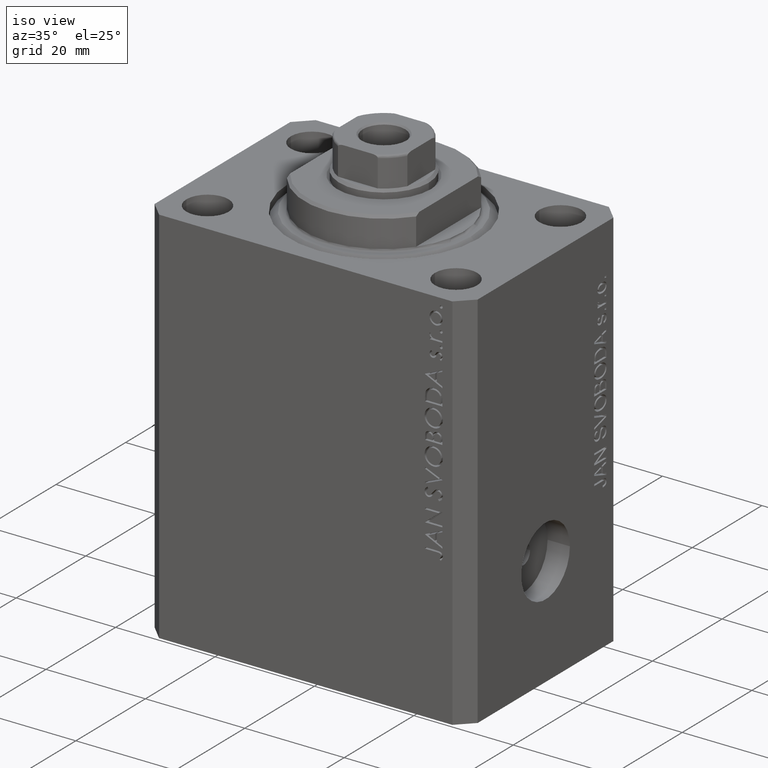
[diagram: clean part render]
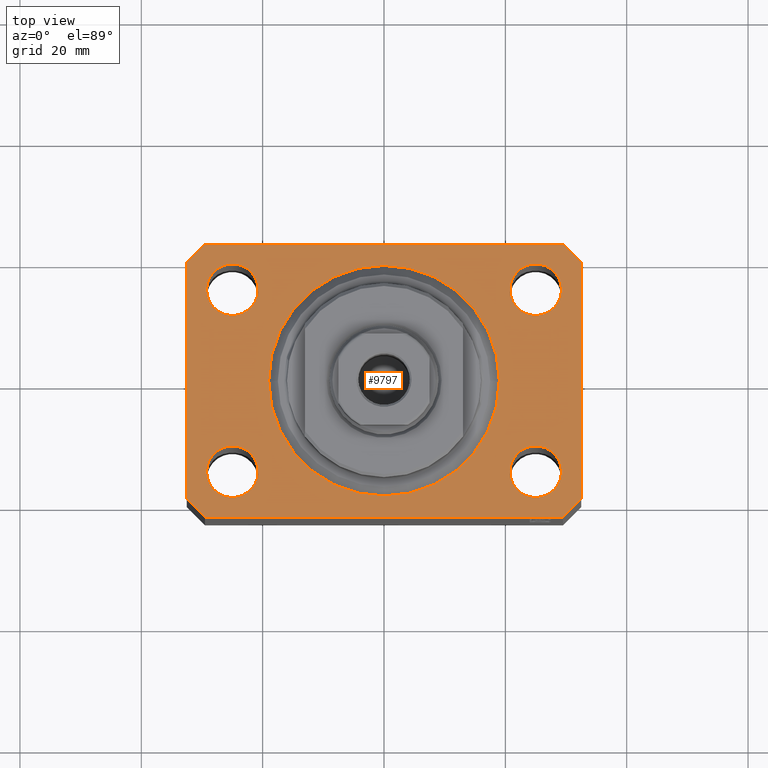
[diagram: tour spotlight — one face highlighted and labeled with its STEP entity id]
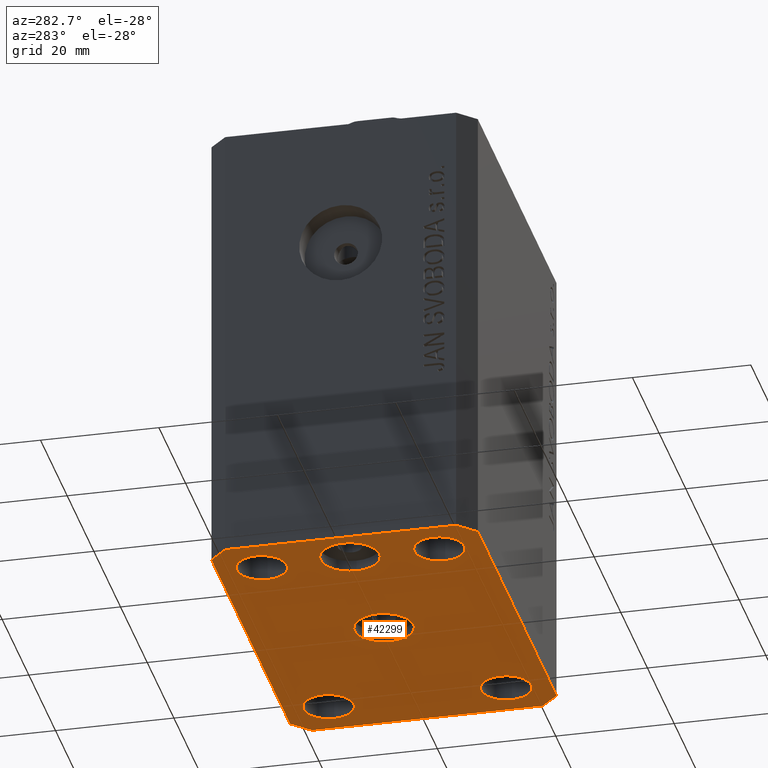
[diagram: tour spotlight — one face highlighted and labeled with its STEP entity id]
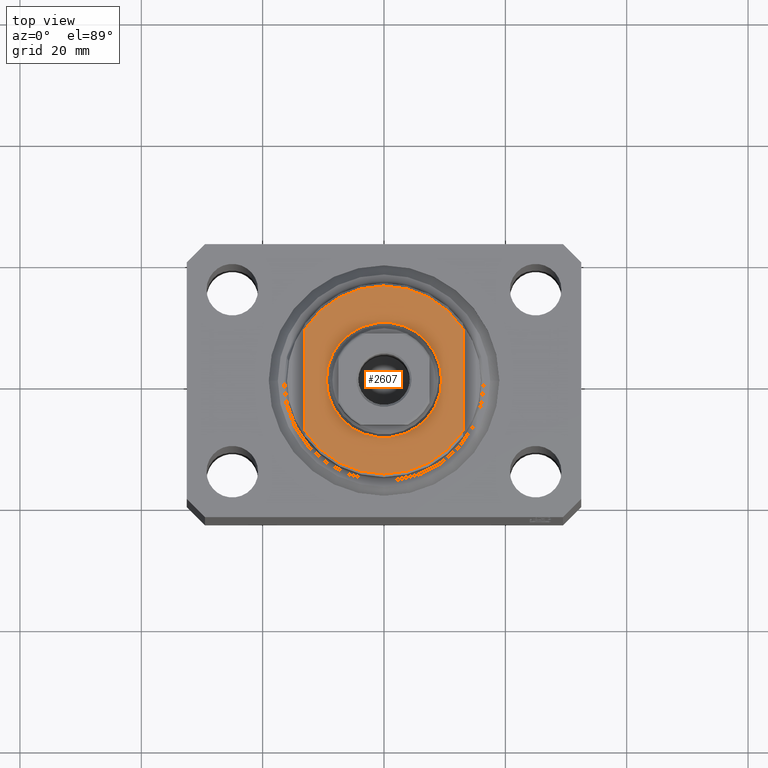
[diagram: tour spotlight — one face highlighted and labeled with its STEP entity id]
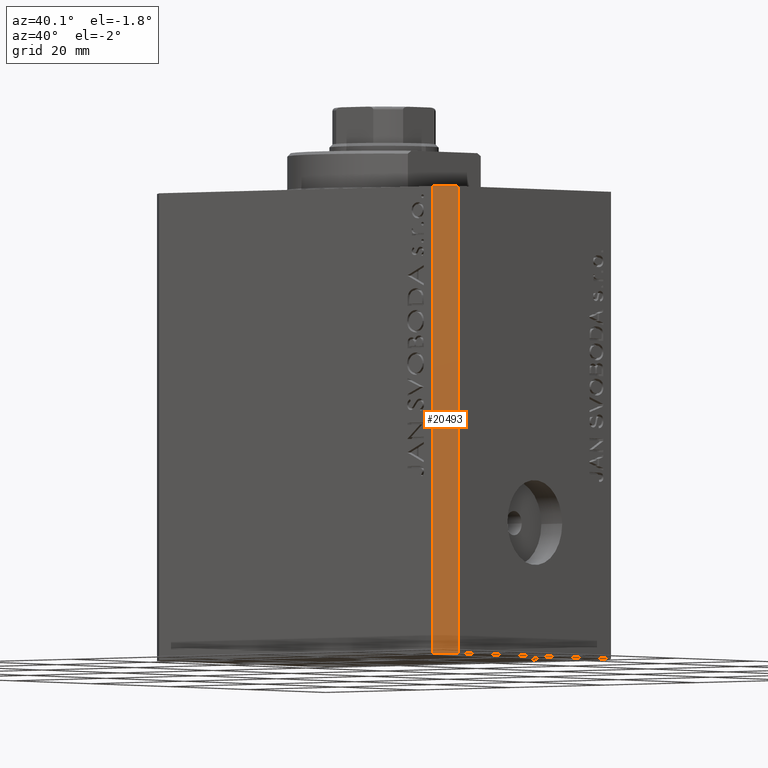
[diagram: tour spotlight — one face highlighted and labeled with its STEP entity id]
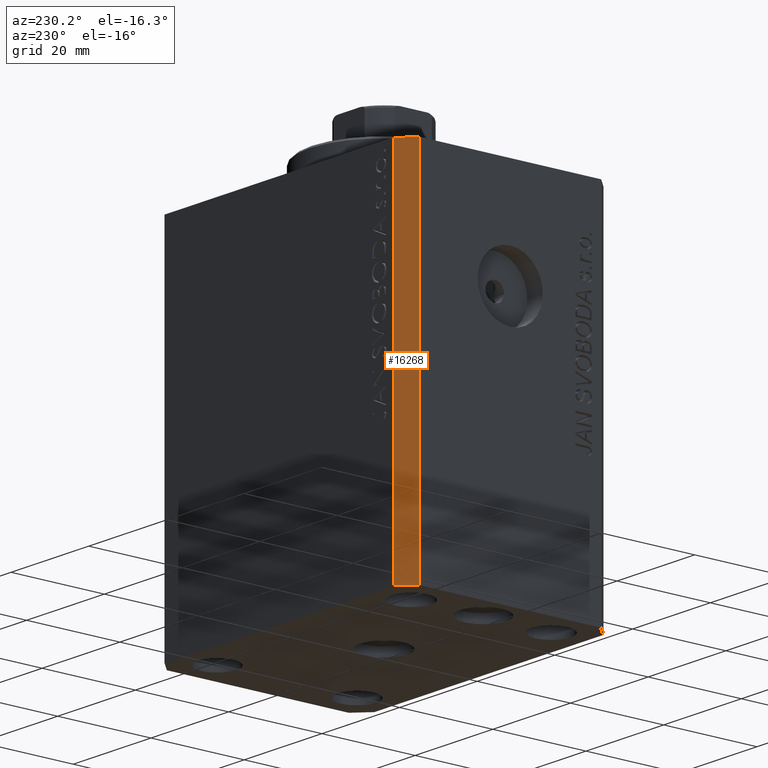
[diagram: tour spotlight — one face highlighted and labeled with its STEP entity id]
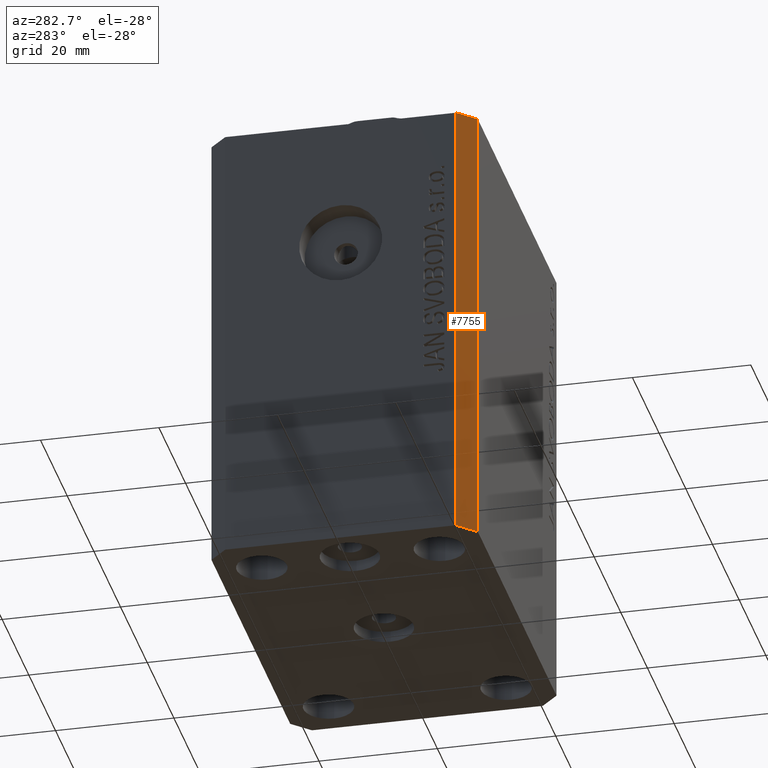
[diagram: tour spotlight — one face highlighted and labeled with its STEP entity id]
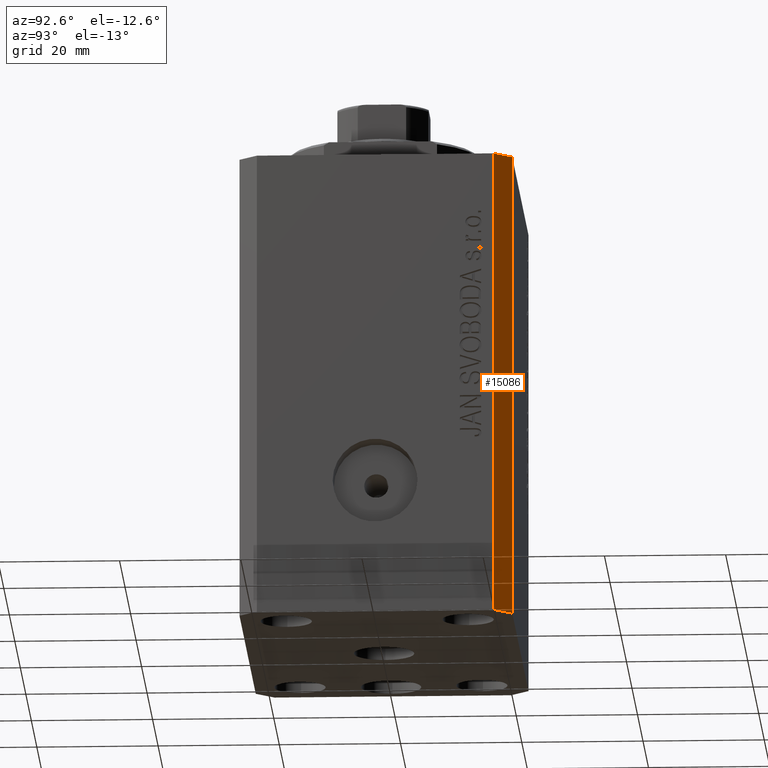
[diagram: tour spotlight — one face highlighted and labeled with its STEP entity id]
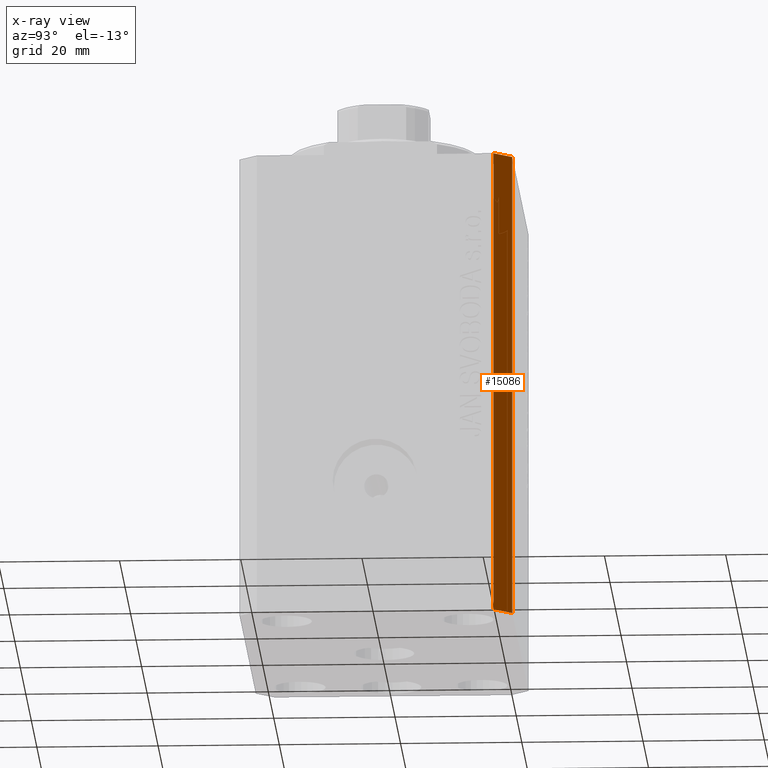
[diagram: x-ray of the same camera — body ghosted, this tour face saturated]
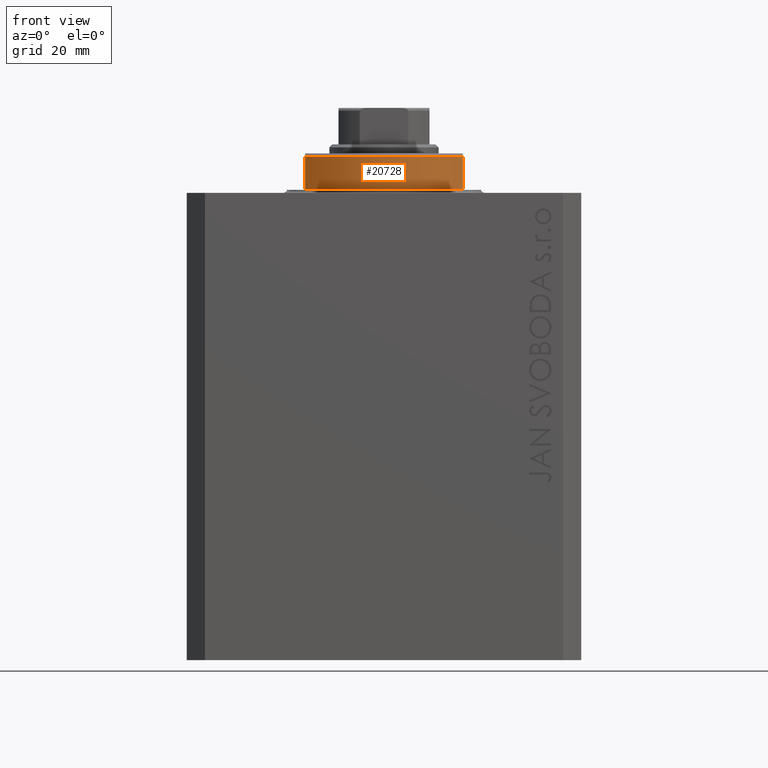
[diagram: tour spotlight — one face highlighted and labeled with its STEP entity id]
A machine part: a face-by-face anatomy tour. The part has 872 B-rep faces; the first image is the clean iso view, then the 8 largest visible faces are spotlighted one at a time (largest first), each with its STEP entity span.

Face 1 — top view, entity #9797. In plain terms, the highlighted planar face has unit normal (0, 0, 1).
Definition (entity closure, byte-faithful):
#174 = FACE_BOUND ( 'NONE', #36271, .T. ) ;
#799 = DIRECTION ( 'NONE',  ( 1.000000000000000000, 1.176083712526788232E-16, 0.000000000000000000 ) ) ;
#910 = VERTEX_POINT ( 'NONE', #35014 ) ;
#1026 = EDGE_CURVE ( 'NONE', #30243, #38079, #16422, .T. ) ;
#1365 = CIRCLE ( 'NONE', #15105, 4.250000000040370374 ) ;
#1770 = VECTOR ( 'NONE', #18984, 1000.000000000000000 ) ;
#2295 = VERTEX_POINT ( 'NONE', #39845 ) ;
#2448 = DIRECTION ( 'NONE',  ( 1.000000000000000000, 0.000000000000000000, 0.000000000000000000 ) ) ;
#2594 = DIRECTION ( 'NONE',  ( 1.000000000000000000, 0.000000000000000000, 0.000000000000000000 ) ) ;
#2703 = ORIENTED_EDGE ( 'NONE', *, *, #3623, .F. ) ;
#3148 = ORIENTED_EDGE ( 'NONE', *, *, #23228, .T. ) ;
#3334 = VERTEX_POINT ( 'NONE', #9549 ) ;
#3623 = EDGE_CURVE ( 'NONE', #13708, #6748, #14978, .T. ) ;
#3875 = EDGE_LOOP ( 'NONE', ( #36753, #8417 ) ) ;
#3958 = CARTESIAN_POINT ( 'NONE',  ( -25.00000000000000000, 14.99999999999999645, 0.000000000000000000 ) ) ;
#4056 = DIRECTION ( 'NONE',  ( 1.000000000000000000, 0.000000000000000000, 0.000000000000000000 ) ) ;
#4312 = CARTESIAN_POINT ( 'NONE',  ( 32.49999999999702993, 19.49999999999945999, 0.000000000000000000 ) ) ;
#4405 = ORIENTED_EDGE ( 'NONE', *, *, #34308, .F. ) ;
#4838 = CARTESIAN_POINT ( 'NONE',  ( -24.99999999999999289, -15.00000000000000355, 0.000000000000000000 ) ) ;
#4841 = EDGE_LOOP ( 'NONE', ( #28428, #4405 ) ) ;
#5182 = CIRCLE ( 'NONE', #20350, 4.250000000040370374 ) ;
#5966 = EDGE_CURVE ( 'NONE', #26535, #33565, #23826, .T. ) ;
#6162 = EDGE_CURVE ( 'NONE', #9951, #40370, #26653, .T. ) ;
#6533 = ORIENTED_EDGE ( 'NONE', *, *, #32008, .T. ) ;
#6611 = EDGE_CURVE ( 'NONE', #36564, #26535, #7877, .T. ) ;
#6712 = CIRCLE ( 'NONE', #29719, 4.250000000021375790 ) ;
#6726 = DIRECTION ( 'NONE',  ( 0.000000000000000000, 0.000000000000000000, 1.000000000000000000 ) ) ;
#6748 = VERTEX_POINT ( 'NONE', #42190 ) ;
#6767 = EDGE_CURVE ( 'NONE', #910, #2295, #1365, .T. ) ;
#6836 = AXIS2_PLACEMENT_3D ( 'NONE', #11343, #20845, #17232 ) ;
#7877 = LINE ( 'NONE', #31842, #41077 ) ;
#7934 = ORIENTED_EDGE ( 'NONE', *, *, #43990, .F. ) ;
#8099 = DIRECTION ( 'NONE',  ( -1.000000000000000000, -3.528251137580330676E-16, 0.000000000000000000 ) ) ;
#8417 = ORIENTED_EDGE ( 'NONE', *, *, #6162, .F. ) ;
#8634 = EDGE_CURVE ( 'NONE', #3334, #29466, #10694, .T. ) ;
#9326 = VERTEX_POINT ( 'NONE', #41653 ) ;
#9549 = CARTESIAN_POINT ( 'NONE',  ( 19.00000000000000000, 0.000000000000000000, 0.000000000000000000 ) ) ;
#9797 = ADVANCED_FACE ( 'NONE', ( #24146, #27529, #174, #37714, #28585, #27762 ), #24369, .T. ) ;
#9951 = VERTEX_POINT ( 'NONE', #44376 ) ;
#10303 = CARTESIAN_POINT ( 'NONE',  ( 29.49999999999707967, 22.49999999999952038, 0.000000000000000000 ) ) ;
#10511 = VERTEX_POINT ( 'NONE', #30043 ) ;
#10541 = CARTESIAN_POINT ( 'NONE',  ( 0.000000000000000000, 0.000000000000000000, 0.000000000000000000 ) ) ;
#10694 = CIRCLE ( 'NONE', #16472, 19.00000000000000000 ) ;
#10953 = DIRECTION ( 'NONE',  ( 1.000000000000000000, 0.000000000000000000, 0.000000000000000000 ) ) ;
#11343 = CARTESIAN_POINT ( 'NONE',  ( 0.000000000000000000, 0.000000000000000000, 0.000000000000000000 ) ) ;
#11864 = DIRECTION ( 'NONE',  ( 0.000000000000000000, 0.000000000000000000, 1.000000000000000000 ) ) ;
#12806 = DIRECTION ( 'NONE',  ( 1.334402673828349134E-14, 1.000000000000000000, 0.000000000000000000 ) ) ;
#12873 = CARTESIAN_POINT ( 'NONE',  ( 32.49999999999702993, 19.49999999999945999, 0.000000000000000000 ) ) ;
#12901 = EDGE_LOOP ( 'NONE', ( #39689, #34670 ) ) ;
#13260 = DIRECTION ( 'NONE',  ( 1.000000000000000000, 0.000000000000000000, 0.000000000000000000 ) ) ;
#13498 = CARTESIAN_POINT ( 'NONE',  ( -29.49999999999650413, 22.49999999999949907, 0.000000000000000000 ) ) ;
#13708 = VERTEX_POINT ( 'NONE', #29099 ) ;
#14100 = CARTESIAN_POINT ( 'NONE',  ( 29.49999999999650413, -22.49999999999949196, 0.000000000000000000 ) ) ;
#14576 = ORIENTED_EDGE ( 'NONE', *, *, #43115, .T. ) ;
#14577 = EDGE_CURVE ( 'NONE', #33565, #10511, #27133, .T. ) ;
#14978 = CIRCLE ( 'NONE', #44624, 4.249999999976314058 ) ;
#15105 = AXIS2_PLACEMENT_3D ( 'NONE', #38814, #11864, #22261 ) ;
#16228 = CARTESIAN_POINT ( 'NONE',  ( -25.00000000000000000, 14.99999999999999645, 0.000000000000000000 ) ) ;
#16233 = CARTESIAN_POINT ( 'NONE',  ( 24.99999999999999289, -15.00000000000000355, 0.000000000000000000 ) ) ;
#16422 = LINE ( 'NONE', #30225, #22073 ) ;
#16472 = AXIS2_PLACEMENT_3D ( 'NONE', #10541, #27955, #13260 ) ;
#17232 = DIRECTION ( 'NONE',  ( 1.000000000000000000, 0.000000000000000000, 0.000000000000000000 ) ) ;
#17473 = CARTESIAN_POINT ( 'NONE',  ( -29.49999999999650413, 22.49999999999949907, 0.000000000000000000 ) ) ;
#17756 = ORIENTED_EDGE ( 'NONE', *, *, #33889, .F. ) ;
#17761 = LINE ( 'NONE', #18637, #37793 ) ;
#18007 = CARTESIAN_POINT ( 'NONE',  ( 29.49999999999650413, -22.49999999999949196, 0.000000000000000000 ) ) ;
#18500 = CARTESIAN_POINT ( 'NONE',  ( 25.00000000000000000, 14.99999999999999289, 0.000000000000000000 ) ) ;
#18637 = CARTESIAN_POINT ( 'NONE',  ( -29.49999999999650413, -22.49999999999949907, 0.000000000000000000 ) ) ;
#18984 = DIRECTION ( 'NONE',  ( -0.7071067811865344721, 0.7071067811865606734, 0.000000000000000000 ) ) ;
#19057 = DIRECTION ( 'NONE',  ( 0.7071067811865474617, -0.7071067811865474617, 0.000000000000000000 ) ) ;
#19090 = DIRECTION ( 'NONE',  ( 0.000000000000000000, 0.000000000000000000, 1.000000000000000000 ) ) ;
#19691 = CIRCLE ( 'NONE', #34141, 4.249999999957291053 ) ;
#20283 = DIRECTION ( 'NONE',  ( 1.000000000000000000, 0.000000000000000000, 0.000000000000000000 ) ) ;
#20350 = AXIS2_PLACEMENT_3D ( 'NONE', #4838, #28366, #10953 ) ;
#20381 = CIRCLE ( 'NONE', #23306, 4.250000000021375790 ) ;
#20430 = DIRECTION ( 'NONE',  ( 0.7071067811865483499, 0.7071067811865466846, 0.000000000000000000 ) ) ;
#20516 = DIRECTION ( 'NONE',  ( 1.000000000000000000, 0.000000000000000000, -0.000000000000000000 ) ) ;
#20845 = DIRECTION ( 'NONE',  ( 0.000000000000000000, 0.000000000000000000, 1.000000000000000000 ) ) ;
#20858 = VECTOR ( 'NONE', #27665, 1000.000000000000114 ) ;
#21380 = CARTESIAN_POINT ( 'NONE',  ( 25.00000000000000000, 14.99999999999999289, 0.000000000000000000 ) ) ;
#21503 = DIRECTION ( 'NONE',  ( 0.000000000000000000, 0.000000000000000000, 1.000000000000000000 ) ) ;
#21584 = EDGE_LOOP ( 'NONE', ( #28498, #31184, #36011, #29215, #3148, #6533, #29380, #14576 ) ) ;
#21784 = EDGE_CURVE ( 'NONE', #10511, #31867, #32634, .T. ) ;
#22073 = VECTOR ( 'NONE', #12806, 1000.000000000000000 ) ;
#22261 = DIRECTION ( 'NONE',  ( 1.000000000000000000, 0.000000000000000000, 0.000000000000000000 ) ) ;
#22391 = DIRECTION ( 'NONE',  ( 1.000000000000000000, 0.000000000000000000, 0.000000000000000000 ) ) ;
#22990 = AXIS2_PLACEMENT_3D ( 'NONE', #35588, #6726, #20516 ) ;
#23228 = EDGE_CURVE ( 'NONE', #31867, #39875, #17761, .T. ) ;
#23306 = AXIS2_PLACEMENT_3D ( 'NONE', #16228, #36366, #2448 ) ;
#23515 = CARTESIAN_POINT ( 'NONE',  ( -32.49999999999650413, 19.49999999999949907, 0.000000000000000000 ) ) ;
#23826 = LINE ( 'NONE', #17473, #20858 ) ;
#24146 = FACE_BOUND ( 'NONE', #39015, .T. ) ;
#24369 = PLANE ( 'NONE',  #22990 ) ;
#24913 = CARTESIAN_POINT ( 'NONE',  ( 24.99999999999999289, -15.00000000000000355, 0.000000000000000000 ) ) ;
#25265 = VERTEX_POINT ( 'NONE', #32796 ) ;
#25440 = EDGE_CURVE ( 'NONE', #40370, #9951, #19691, .T. ) ;
#25734 = CARTESIAN_POINT ( 'NONE',  ( -32.49999999999650413, 19.49999999999949907, 0.000000000000000000 ) ) ;
#26333 = CIRCLE ( 'NONE', #6836, 19.00000000000000000 ) ;
#26535 = VERTEX_POINT ( 'NONE', #13498 ) ;
#26653 = CIRCLE ( 'NONE', #41793, 4.249999999957291053 ) ;
#26782 = CARTESIAN_POINT ( 'NONE',  ( -29.49999999999650413, -22.49999999999949907, 0.000000000000000000 ) ) ;
#27133 = LINE ( 'NONE', #23515, #42638 ) ;
#27529 = FACE_BOUND ( 'NONE', #12901, .T. ) ;
#27665 = DIRECTION ( 'NONE',  ( -0.7071067811865474617, -0.7071067811865474617, 0.000000000000000000 ) ) ;
#27762 = FACE_OUTER_BOUND ( 'NONE', #21584, .T. ) ;
#27807 = VECTOR ( 'NONE', #20430, 1000.000000000000000 ) ;
#27955 = DIRECTION ( 'NONE',  ( 0.000000000000000000, 0.000000000000000000, 1.000000000000000000 ) ) ;
#28119 = LINE ( 'NONE', #14100, #27807 ) ;
#28366 = DIRECTION ( 'NONE',  ( 0.000000000000000000, 0.000000000000000000, 1.000000000000000000 ) ) ;
#28428 = ORIENTED_EDGE ( 'NONE', *, *, #34882, .F. ) ;
#28461 = DIRECTION ( 'NONE',  ( 0.000000000000000000, 0.000000000000000000, 1.000000000000000000 ) ) ;
#28498 = ORIENTED_EDGE ( 'NONE', *, *, #6611, .T. ) ;
#28585 = FACE_BOUND ( 'NONE', #4841, .T. ) ;
#29014 = CARTESIAN_POINT ( 'NONE',  ( -32.49999999999650413, -19.49999999999949907, 0.000000000000000000 ) ) ;
#29099 = CARTESIAN_POINT ( 'NONE',  ( 20.75000000002367884, -15.00000000000000355, 0.000000000000000000 ) ) ;
#29215 = ORIENTED_EDGE ( 'NONE', *, *, #21784, .T. ) ;
#29380 = ORIENTED_EDGE ( 'NONE', *, *, #1026, .T. ) ;
#29466 = VERTEX_POINT ( 'NONE', #42944 ) ;
#29719 = AXIS2_PLACEMENT_3D ( 'NONE', #3958, #41710, #38331 ) ;
#29795 = VECTOR ( 'NONE', #19057, 1000.000000000000114 ) ;
#30037 = DIRECTION ( 'NONE',  ( 0.000000000000000000, 0.000000000000000000, 1.000000000000000000 ) ) ;
#30043 = CARTESIAN_POINT ( 'NONE',  ( -32.49999999999650413, -19.49999999999949907, 0.000000000000000000 ) ) ;
#30225 = CARTESIAN_POINT ( 'NONE',  ( 32.49999999999651124, -19.49999999999949196, 0.000000000000000000 ) ) ;
#30243 = VERTEX_POINT ( 'NONE', #34899 ) ;
#31184 = ORIENTED_EDGE ( 'NONE', *, *, #5966, .T. ) ;
#31842 = CARTESIAN_POINT ( 'NONE',  ( 29.49999999999707967, 22.49999999999952038, 0.000000000000000000 ) ) ;
#31867 = VERTEX_POINT ( 'NONE', #26782 ) ;
#32008 = EDGE_CURVE ( 'NONE', #39875, #30243, #28119, .T. ) ;
#32634 = LINE ( 'NONE', #29014, #29795 ) ;
#32796 = CARTESIAN_POINT ( 'NONE',  ( -20.74999999997862687, 14.99999999999999645, 0.000000000000000000 ) ) ;
#33565 = VERTEX_POINT ( 'NONE', #25734 ) ;
#33889 = EDGE_CURVE ( 'NONE', #6748, #13708, #36276, .T. ) ;
#34141 = AXIS2_PLACEMENT_3D ( 'NONE', #18500, #28461, #4056 ) ;
#34308 = EDGE_CURVE ( 'NONE', #9326, #25265, #20381, .T. ) ;
#34670 = ORIENTED_EDGE ( 'NONE', *, *, #35954, .F. ) ;
#34882 = EDGE_CURVE ( 'NONE', #25265, #9326, #6712, .T. ) ;
#34899 = CARTESIAN_POINT ( 'NONE',  ( 32.49999999999651124, -19.49999999999949196, 0.000000000000000000 ) ) ;
#35014 = CARTESIAN_POINT ( 'NONE',  ( -20.74999999995962341, -15.00000000000000355, 0.000000000000000000 ) ) ;
#35588 = CARTESIAN_POINT ( 'NONE',  ( 0.000000000000000000, 0.000000000000000000, 0.000000000000000000 ) ) ;
#35954 = EDGE_CURVE ( 'NONE', #2295, #910, #5182, .T. ) ;
#36011 = ORIENTED_EDGE ( 'NONE', *, *, #14577, .T. ) ;
#36271 = EDGE_LOOP ( 'NONE', ( #17756, #2703 ) ) ;
#36276 = CIRCLE ( 'NONE', #40643, 4.249999999976314058 ) ;
#36366 = DIRECTION ( 'NONE',  ( 0.000000000000000000, 0.000000000000000000, 1.000000000000000000 ) ) ;
#36564 = VERTEX_POINT ( 'NONE', #10303 ) ;
#36753 = ORIENTED_EDGE ( 'NONE', *, *, #25440, .F. ) ;
#37379 = CARTESIAN_POINT ( 'NONE',  ( 29.24999999995729283, 14.99999999999999289, 0.000000000000000000 ) ) ;
#37714 = FACE_BOUND ( 'NONE', #3875, .T. ) ;
#37793 = VECTOR ( 'NONE', #799, 1000.000000000000000 ) ;
#38079 = VERTEX_POINT ( 'NONE', #4312 ) ;
#38331 = DIRECTION ( 'NONE',  ( 1.000000000000000000, 0.000000000000000000, 0.000000000000000000 ) ) ;
#38814 = CARTESIAN_POINT ( 'NONE',  ( -24.99999999999999289, -15.00000000000000355, 0.000000000000000000 ) ) ;
#39015 = EDGE_LOOP ( 'NONE', ( #42440, #7934 ) ) ;
#39689 = ORIENTED_EDGE ( 'NONE', *, *, #6767, .F. ) ;
#39845 = CARTESIAN_POINT ( 'NONE',  ( -29.25000000004036593, -15.00000000000000355, 0.000000000000000000 ) ) ;
#39875 = VERTEX_POINT ( 'NONE', #18007 ) ;
#40370 = VERTEX_POINT ( 'NONE', #37379 ) ;
#40643 = AXIS2_PLACEMENT_3D ( 'NONE', #24913, #21503, #22391 ) ;
#40705 = DIRECTION ( 'NONE',  ( 0.000000000000000000, -1.000000000000000000, 0.000000000000000000 ) ) ;
#41077 = VECTOR ( 'NONE', #8099, 1000.000000000000000 ) ;
#41653 = CARTESIAN_POINT ( 'NONE',  ( -29.25000000002137668, 14.99999999999999645, 0.000000000000000000 ) ) ;
#41710 = DIRECTION ( 'NONE',  ( 0.000000000000000000, 0.000000000000000000, 1.000000000000000000 ) ) ;
#41793 = AXIS2_PLACEMENT_3D ( 'NONE', #21380, #19090, #2594 ) ;
#42190 = CARTESIAN_POINT ( 'NONE',  ( 29.24999999997631051, -15.00000000000000355, 0.000000000000000000 ) ) ;
#42440 = ORIENTED_EDGE ( 'NONE', *, *, #8634, .F. ) ;
#42638 = VECTOR ( 'NONE', #40705, 1000.000000000000000 ) ;
#42944 = CARTESIAN_POINT ( 'NONE',  ( -19.00000000000000000, 2.326828918379970970E-15, 0.000000000000000000 ) ) ;
#43115 = EDGE_CURVE ( 'NONE', #38079, #36564, #43628, .T. ) ;
#43628 = LINE ( 'NONE', #12873, #1770 ) ;
#43990 = EDGE_CURVE ( 'NONE', #29466, #3334, #26333, .T. ) ;
#44376 = CARTESIAN_POINT ( 'NONE',  ( 20.75000000004271072, 14.99999999999999289, 0.000000000000000000 ) ) ;
#44624 = AXIS2_PLACEMENT_3D ( 'NONE', #16233, #30037, #20283 ) ;

Face 2 — auxiliary view, entity #42299. In plain terms, the highlighted planar face has unit normal (0, 0, 1).
Definition (entity closure, byte-faithful):
#40 = EDGE_LOOP ( 'NONE', ( #23944, #20248 ) ) ;
#81 = VERTEX_POINT ( 'NONE', #13479 ) ;
#236 = CIRCLE ( 'NONE', #5990, 4.249999999976314058 ) ;
#432 = CARTESIAN_POINT ( 'NONE',  ( 32.49999999999702993, 19.49999999999945999, -77.00000000000000000 ) ) ;
#1785 = VERTEX_POINT ( 'NONE', #29779 ) ;
#2425 = FACE_BOUND ( 'NONE', #36197, .T. ) ;
#2439 = LINE ( 'NONE', #37029, #10977 ) ;
#2455 = AXIS2_PLACEMENT_3D ( 'NONE', #9627, #15501, #29310 ) ;
#3538 = DIRECTION ( 'NONE',  ( 1.000000000000000000, 1.176083712526788232E-16, 0.000000000000000000 ) ) ;
#4087 = DIRECTION ( 'NONE',  ( -1.000000000000000000, 0.000000000000000000, 0.000000000000000000 ) ) ;
#4379 = CARTESIAN_POINT ( 'NONE',  ( 25.00000000000000000, 14.99999999999999289, -77.00000000000000000 ) ) ;
#4656 = VERTEX_POINT ( 'NONE', #15508 ) ;
#4717 = CARTESIAN_POINT ( 'NONE',  ( -29.25000000002137668, 14.99999999999999645, -77.00000000000000000 ) ) ;
#5288 = VECTOR ( 'NONE', #38309, 1000.000000000000000 ) ;
#5688 = ORIENTED_EDGE ( 'NONE', *, *, #12981, .F. ) ;
#5747 = AXIS2_PLACEMENT_3D ( 'NONE', #20472, #14568, #41057 ) ;
#5990 = AXIS2_PLACEMENT_3D ( 'NONE', #8672, #40106, #25850 ) ;
#6090 = VERTEX_POINT ( 'NONE', #36645 ) ;
#6470 = CARTESIAN_POINT ( 'NONE',  ( 0.000000000000000000, 0.000000000000000000, -77.00000000000000000 ) ) ;
#6521 = EDGE_LOOP ( 'NONE', ( #36711, #7642, #34486, #36423, #30189, #14728, #39263, #32217 ) ) ;
#6859 = VERTEX_POINT ( 'NONE', #22714 ) ;
#6884 = CARTESIAN_POINT ( 'NONE',  ( -32.49999999999650413, 19.49999999999949907, -77.00000000000000000 ) ) ;
#7425 = CIRCLE ( 'NONE', #9591, 4.250000000040370374 ) ;
#7474 = CARTESIAN_POINT ( 'NONE',  ( 0.000000000000000000, 0.000000000000000000, -77.00000000000000000 ) ) ;
#7549 = EDGE_CURVE ( 'NONE', #6090, #13692, #14824, .T. ) ;
#7642 = ORIENTED_EDGE ( 'NONE', *, *, #42023, .F. ) ;
#7652 = DIRECTION ( 'NONE',  ( -0.7071067811865344721, 0.7071067811865606734, 0.000000000000000000 ) ) ;
#7682 = DIRECTION ( 'NONE',  ( -1.000000000000000000, 0.000000000000000000, 0.000000000000000000 ) ) ;
#7751 = EDGE_CURVE ( 'NONE', #12394, #34223, #17276, .T. ) ;
#8045 = CIRCLE ( 'NONE', #8753, 5.000000000000000000 ) ;
#8150 = CARTESIAN_POINT ( 'NONE',  ( 25.00000000000000000, 14.99999999999999289, -77.00000000000000000 ) ) ;
#8486 = CARTESIAN_POINT ( 'NONE',  ( 32.49999999999651124, -19.49999999999949196, -77.00000000000000000 ) ) ;
#8672 = CARTESIAN_POINT ( 'NONE',  ( 24.99999999999999289, -15.00000000000000355, -77.00000000000000000 ) ) ;
#8753 = AXIS2_PLACEMENT_3D ( 'NONE', #31868, #11066, #7682 ) ;
#8839 = VERTEX_POINT ( 'NONE', #22494 ) ;
#8964 = VECTOR ( 'NONE', #7652, 1000.000000000000000 ) ;
#8970 = CARTESIAN_POINT ( 'NONE',  ( 32.49999999999702993, 19.49999999999945999, -77.00000000000000000 ) ) ;
#9199 = CARTESIAN_POINT ( 'NONE',  ( 29.49999999999650413, -22.49999999999949196, -77.00000000000000000 ) ) ;
#9520 = CIRCLE ( 'NONE', #34803, 5.000000000000000000 ) ;
#9573 = VERTEX_POINT ( 'NONE', #31637 ) ;
#9591 = AXIS2_PLACEMENT_3D ( 'NONE', #41652, #10885, #34650 ) ;
#9627 = CARTESIAN_POINT ( 'NONE',  ( -25.00000000000000000, 14.99999999999999645, -77.00000000000000000 ) ) ;
#10042 = CARTESIAN_POINT ( 'NONE',  ( -24.99999999999999289, -15.00000000000000355, -77.00000000000000000 ) ) ;
#10271 = LINE ( 'NONE', #6884, #17313 ) ;
#10415 = VERTEX_POINT ( 'NONE', #15784 ) ;
#10727 = CARTESIAN_POINT ( 'NONE',  ( -20.50000000000333955, 6.123233995732674066E-16, -77.00000000000000000 ) ) ;
#10885 = DIRECTION ( 'NONE',  ( -0.000000000000000000, -0.000000000000000000, -1.000000000000000000 ) ) ;
#10977 = VECTOR ( 'NONE', #16218, 1000.000000000000000 ) ;
#11066 = DIRECTION ( 'NONE',  ( 0.000000000000000000, 0.000000000000000000, -1.000000000000000000 ) ) ;
#11226 = ORIENTED_EDGE ( 'NONE', *, *, #36490, .F. ) ;
#11600 = DIRECTION ( 'NONE',  ( 0.000000000000000000, 0.000000000000000000, -1.000000000000000000 ) ) ;
#11860 = CIRCLE ( 'NONE', #16192, 4.250000000021375790 ) ;
#12394 = VERTEX_POINT ( 'NONE', #15790 ) ;
#12891 = CARTESIAN_POINT ( 'NONE',  ( -32.49999999999650413, -19.49999999999949907, -77.00000000000000000 ) ) ;
#12893 = ORIENTED_EDGE ( 'NONE', *, *, #18099, .F. ) ;
#12981 = EDGE_CURVE ( 'NONE', #37125, #26823, #44008, .T. ) ;
#13479 = CARTESIAN_POINT ( 'NONE',  ( -29.49999999999650413, 22.49999999999949907, -77.00000000000000000 ) ) ;
#13664 = EDGE_CURVE ( 'NONE', #43841, #21118, #23836, .T. ) ;
#13692 = VERTEX_POINT ( 'NONE', #8970 ) ;
#14244 = VERTEX_POINT ( 'NONE', #12891 ) ;
#14309 = EDGE_CURVE ( 'NONE', #28680, #14244, #10271, .T. ) ;
#14335 = DIRECTION ( 'NONE',  ( -0.7071067811865474617, -0.7071067811865474617, 0.000000000000000000 ) ) ;
#14555 = CARTESIAN_POINT ( 'NONE',  ( -29.49999999999650413, 22.49999999999949907, -77.00000000000000000 ) ) ;
#14568 = DIRECTION ( 'NONE',  ( 0.000000000000000000, 0.000000000000000000, -1.000000000000000000 ) ) ;
#14728 = ORIENTED_EDGE ( 'NONE', *, *, #36014, .F. ) ;
#14824 = LINE ( 'NONE', #8486, #39649 ) ;
#15345 = EDGE_LOOP ( 'NONE', ( #11226, #12893 ) ) ;
#15403 = CIRCLE ( 'NONE', #2455, 4.250000000021375790 ) ;
#15435 = EDGE_CURVE ( 'NONE', #26823, #37125, #27476, .T. ) ;
#15501 = DIRECTION ( 'NONE',  ( -0.000000000000000000, -0.000000000000000000, -1.000000000000000000 ) ) ;
#15508 = CARTESIAN_POINT ( 'NONE',  ( 29.49999999999707967, 22.49999999999952038, -77.00000000000000000 ) ) ;
#15784 = CARTESIAN_POINT ( 'NONE',  ( -29.49999999999650413, -22.49999999999949907, -77.00000000000000000 ) ) ;
#15790 = CARTESIAN_POINT ( 'NONE',  ( -29.25000000004036593, -15.00000000000000355, -77.00000000000000000 ) ) ;
#15810 = EDGE_LOOP ( 'NONE', ( #33518, #25776 ) ) ;
#15969 = PLANE ( 'NONE',  #38589 ) ;
#16192 = AXIS2_PLACEMENT_3D ( 'NONE', #39680, #35401, #25881 ) ;
#16205 = FACE_BOUND ( 'NONE', #15345, .T. ) ;
#16218 = DIRECTION ( 'NONE',  ( -1.000000000000000000, -3.528251137580330676E-16, 0.000000000000000000 ) ) ;
#16732 = ORIENTED_EDGE ( 'NONE', *, *, #42458, .F. ) ;
#17049 = DIRECTION ( 'NONE',  ( -0.000000000000000000, -0.000000000000000000, -1.000000000000000000 ) ) ;
#17276 = CIRCLE ( 'NONE', #42550, 4.250000000040370374 ) ;
#17313 = VECTOR ( 'NONE', #20216, 1000.000000000000000 ) ;
#17430 = AXIS2_PLACEMENT_3D ( 'NONE', #4379, #29461, #32858 ) ;
#17482 = VECTOR ( 'NONE', #3538, 1000.000000000000000 ) ;
#17493 = DIRECTION ( 'NONE',  ( 1.000000000000000000, 0.000000000000000000, 0.000000000000000000 ) ) ;
#17644 = EDGE_CURVE ( 'NONE', #9573, #6859, #30407, .T. ) ;
#18099 = EDGE_CURVE ( 'NONE', #37566, #30965, #8045, .T. ) ;
#18723 = CARTESIAN_POINT ( 'NONE',  ( -20.74999999995962341, -15.00000000000000355, -77.00000000000000000 ) ) ;
#19822 = FACE_BOUND ( 'NONE', #22179, .T. ) ;
#20216 = DIRECTION ( 'NONE',  ( 0.000000000000000000, -1.000000000000000000, 0.000000000000000000 ) ) ;
#20248 = ORIENTED_EDGE ( 'NONE', *, *, #7751, .F. ) ;
#20378 = EDGE_CURVE ( 'NONE', #4656, #81, #2439, .T. ) ;
#20472 = CARTESIAN_POINT ( 'NONE',  ( -25.50000000000000000, 0.000000000000000000, -77.00000000000000000 ) ) ;
#20949 = AXIS2_PLACEMENT_3D ( 'NONE', #39642, #11600, #25394 ) ;
#21118 = VERTEX_POINT ( 'NONE', #26636 ) ;
#21708 = CARTESIAN_POINT ( 'NONE',  ( -30.49999999999665690, 0.000000000000000000, -77.00000000000000000 ) ) ;
#22179 = EDGE_LOOP ( 'NONE', ( #5688, #22912 ) ) ;
#22267 = DIRECTION ( 'NONE',  ( 1.334402673828349134E-14, 1.000000000000000000, 0.000000000000000000 ) ) ;
#22458 = DIRECTION ( 'NONE',  ( 0.7071067811865474617, -0.7071067811865474617, 0.000000000000000000 ) ) ;
#22494 = CARTESIAN_POINT ( 'NONE',  ( 29.49999999999650413, -22.49999999999949196, -77.00000000000000000 ) ) ;
#22714 = CARTESIAN_POINT ( 'NONE',  ( 29.24999999995729283, 14.99999999999999289, -77.00000000000000000 ) ) ;
#22912 = ORIENTED_EDGE ( 'NONE', *, *, #15435, .F. ) ;
#22986 = ORIENTED_EDGE ( 'NONE', *, *, #40740, .F. ) ;
#23590 = ORIENTED_EDGE ( 'NONE', *, *, #17644, .F. ) ;
#23836 = CIRCLE ( 'NONE', #25991, 4.249999999976314058 ) ;
#23944 = ORIENTED_EDGE ( 'NONE', *, *, #33840, .F. ) ;
#24101 = EDGE_CURVE ( 'NONE', #8839, #6090, #34689, .T. ) ;
#25057 = LINE ( 'NONE', #432, #8964 ) ;
#25394 = DIRECTION ( 'NONE',  ( -1.000000000000000000, 0.000000000000000000, 0.000000000000000000 ) ) ;
#25405 = LINE ( 'NONE', #14555, #37783 ) ;
#25472 = VERTEX_POINT ( 'NONE', #4717 ) ;
#25776 = ORIENTED_EDGE ( 'NONE', *, *, #35068, .F. ) ;
#25850 = DIRECTION ( 'NONE',  ( 1.000000000000000000, 0.000000000000000000, 0.000000000000000000 ) ) ;
#25881 = DIRECTION ( 'NONE',  ( 1.000000000000000000, 0.000000000000000000, 0.000000000000000000 ) ) ;
#25991 = AXIS2_PLACEMENT_3D ( 'NONE', #26150, #36111, #32717 ) ;
#26150 = CARTESIAN_POINT ( 'NONE',  ( 24.99999999999999289, -15.00000000000000355, -77.00000000000000000 ) ) ;
#26165 = CIRCLE ( 'NONE', #37020, 4.249999999957291053 ) ;
#26636 = CARTESIAN_POINT ( 'NONE',  ( 20.75000000002367884, -15.00000000000000355, -77.00000000000000000 ) ) ;
#26762 = EDGE_LOOP ( 'NONE', ( #40810, #23590 ) ) ;
#26823 = VERTEX_POINT ( 'NONE', #10727 ) ;
#27476 = CIRCLE ( 'NONE', #20949, 4.999999999996659561 ) ;
#28272 = DIRECTION ( 'NONE',  ( 1.000000000000000000, 0.000000000000000000, 0.000000000000000000 ) ) ;
#28680 = VERTEX_POINT ( 'NONE', #42935 ) ;
#29310 = DIRECTION ( 'NONE',  ( 1.000000000000000000, 0.000000000000000000, 0.000000000000000000 ) ) ;
#29461 = DIRECTION ( 'NONE',  ( -0.000000000000000000, -0.000000000000000000, -1.000000000000000000 ) ) ;
#29661 = CARTESIAN_POINT ( 'NONE',  ( -5.000000000000000000, 0.000000000000000000, -77.00000000000000000 ) ) ;
#29779 = CARTESIAN_POINT ( 'NONE',  ( -20.74999999997862687, 14.99999999999999645, -77.00000000000000000 ) ) ;
#30007 = DIRECTION ( 'NONE',  ( 1.000000000000000000, 0.000000000000000000, -0.000000000000000000 ) ) ;
#30189 = ORIENTED_EDGE ( 'NONE', *, *, #37571, .F. ) ;
#30229 = FACE_OUTER_BOUND ( 'NONE', #6521, .T. ) ;
#30407 = CIRCLE ( 'NONE', #17430, 4.249999999957291053 ) ;
#30680 = DIRECTION ( 'NONE',  ( 0.000000000000000000, 0.000000000000000000, 1.000000000000000000 ) ) ;
#30965 = VERTEX_POINT ( 'NONE', #29661 ) ;
#31637 = CARTESIAN_POINT ( 'NONE',  ( 20.75000000004271072, 14.99999999999999289, -77.00000000000000000 ) ) ;
#31868 = CARTESIAN_POINT ( 'NONE',  ( 0.000000000000000000, 0.000000000000000000, -77.00000000000000000 ) ) ;
#32118 = DIRECTION ( 'NONE',  ( -0.000000000000000000, -0.000000000000000000, -1.000000000000000000 ) ) ;
#32217 = ORIENTED_EDGE ( 'NONE', *, *, #34954, .F. ) ;
#32631 = CARTESIAN_POINT ( 'NONE',  ( 29.24999999997631051, -15.00000000000000355, -77.00000000000000000 ) ) ;
#32717 = DIRECTION ( 'NONE',  ( 1.000000000000000000, 0.000000000000000000, 0.000000000000000000 ) ) ;
#32858 = DIRECTION ( 'NONE',  ( 1.000000000000000000, 0.000000000000000000, 0.000000000000000000 ) ) ;
#33399 = FACE_BOUND ( 'NONE', #40, .T. ) ;
#33518 = ORIENTED_EDGE ( 'NONE', *, *, #13664, .F. ) ;
#33776 = LINE ( 'NONE', #43939, #41312 ) ;
#33840 = EDGE_CURVE ( 'NONE', #34223, #12394, #7425, .T. ) ;
#34223 = VERTEX_POINT ( 'NONE', #18723 ) ;
#34486 = ORIENTED_EDGE ( 'NONE', *, *, #7549, .F. ) ;
#34528 = CARTESIAN_POINT ( 'NONE',  ( -29.49999999999650413, -22.49999999999949907, -77.00000000000000000 ) ) ;
#34650 = DIRECTION ( 'NONE',  ( 1.000000000000000000, 0.000000000000000000, 0.000000000000000000 ) ) ;
#34689 = LINE ( 'NONE', #9199, #5288 ) ;
#34803 = AXIS2_PLACEMENT_3D ( 'NONE', #7474, #35062, #4087 ) ;
#34954 = EDGE_CURVE ( 'NONE', #81, #28680, #25405, .T. ) ;
#35062 = DIRECTION ( 'NONE',  ( 0.000000000000000000, 0.000000000000000000, -1.000000000000000000 ) ) ;
#35068 = EDGE_CURVE ( 'NONE', #21118, #43841, #236, .T. ) ;
#35401 = DIRECTION ( 'NONE',  ( -0.000000000000000000, -0.000000000000000000, -1.000000000000000000 ) ) ;
#36014 = EDGE_CURVE ( 'NONE', #14244, #10415, #33776, .T. ) ;
#36111 = DIRECTION ( 'NONE',  ( -0.000000000000000000, -0.000000000000000000, -1.000000000000000000 ) ) ;
#36197 = EDGE_LOOP ( 'NONE', ( #22986, #16732 ) ) ;
#36423 = ORIENTED_EDGE ( 'NONE', *, *, #24101, .F. ) ;
#36490 = EDGE_CURVE ( 'NONE', #30965, #37566, #9520, .T. ) ;
#36645 = CARTESIAN_POINT ( 'NONE',  ( 32.49999999999651124, -19.49999999999949196, -77.00000000000000000 ) ) ;
#36711 = ORIENTED_EDGE ( 'NONE', *, *, #20378, .F. ) ;
#37020 = AXIS2_PLACEMENT_3D ( 'NONE', #8150, #32118, #28272 ) ;
#37029 = CARTESIAN_POINT ( 'NONE',  ( 29.49999999999707967, 22.49999999999952038, -77.00000000000000000 ) ) ;
#37125 = VERTEX_POINT ( 'NONE', #21708 ) ;
#37170 = EDGE_CURVE ( 'NONE', #6859, #9573, #26165, .T. ) ;
#37566 = VERTEX_POINT ( 'NONE', #43794 ) ;
#37571 = EDGE_CURVE ( 'NONE', #10415, #8839, #41071, .T. ) ;
#37783 = VECTOR ( 'NONE', #14335, 1000.000000000000114 ) ;
#38309 = DIRECTION ( 'NONE',  ( 0.7071067811865483499, 0.7071067811865466846, 0.000000000000000000 ) ) ;
#38589 = AXIS2_PLACEMENT_3D ( 'NONE', #6470, #30680, #30007 ) ;
#39263 = ORIENTED_EDGE ( 'NONE', *, *, #14309, .F. ) ;
#39642 = CARTESIAN_POINT ( 'NONE',  ( -25.50000000000000000, 0.000000000000000000, -77.00000000000000000 ) ) ;
#39649 = VECTOR ( 'NONE', #22267, 1000.000000000000000 ) ;
#39680 = CARTESIAN_POINT ( 'NONE',  ( -25.00000000000000000, 14.99999999999999645, -77.00000000000000000 ) ) ;
#40106 = DIRECTION ( 'NONE',  ( -0.000000000000000000, -0.000000000000000000, -1.000000000000000000 ) ) ;
#40189 = FACE_BOUND ( 'NONE', #15810, .T. ) ;
#40740 = EDGE_CURVE ( 'NONE', #1785, #25472, #15403, .T. ) ;
#40810 = ORIENTED_EDGE ( 'NONE', *, *, #37170, .F. ) ;
#41057 = DIRECTION ( 'NONE',  ( -1.000000000000000000, 0.000000000000000000, 0.000000000000000000 ) ) ;
#41071 = LINE ( 'NONE', #34528, #17482 ) ;
#41312 = VECTOR ( 'NONE', #22458, 1000.000000000000114 ) ;
#41652 = CARTESIAN_POINT ( 'NONE',  ( -24.99999999999999289, -15.00000000000000355, -77.00000000000000000 ) ) ;
#42023 = EDGE_CURVE ( 'NONE', #13692, #4656, #25057, .T. ) ;
#42299 = ADVANCED_FACE ( 'NONE', ( #16205, #19822, #33399, #40189, #44019, #2425, #30229 ), #15969, .F. ) ;
#42458 = EDGE_CURVE ( 'NONE', #25472, #1785, #11860, .T. ) ;
#42550 = AXIS2_PLACEMENT_3D ( 'NONE', #10042, #17049, #17493 ) ;
#42935 = CARTESIAN_POINT ( 'NONE',  ( -32.49999999999650413, 19.49999999999949907, -77.00000000000000000 ) ) ;
#43794 = CARTESIAN_POINT ( 'NONE',  ( 5.000000000000000000, 6.123233995736765296E-16, -77.00000000000000000 ) ) ;
#43841 = VERTEX_POINT ( 'NONE', #32631 ) ;
#43939 = CARTESIAN_POINT ( 'NONE',  ( -32.49999999999650413, -19.49999999999949907, -77.00000000000000000 ) ) ;
#44008 = CIRCLE ( 'NONE', #5747, 4.999999999996659561 ) ;
#44019 = FACE_BOUND ( 'NONE', #26762, .T. ) ;

Face 3 — top view, entity #2607. In plain terms, the highlighted planar face has unit normal (0, 0, 1).
Definition (entity closure, byte-faithful):
#2468 = AXIS2_PLACEMENT_3D ( 'NONE', #39132, #38074, #7077 ) ;
#2607 = ADVANCED_FACE ( 'NONE', ( #42309, #14485 ), #14713, .T. ) ;
#2818 = DIRECTION ( 'NONE',  ( -1.000000000000000000, 0.000000000000000000, 0.000000000000000000 ) ) ;
#3860 = CIRCLE ( 'NONE', #12480, 9.500000000000015987 ) ;
#5171 = DIRECTION ( 'NONE',  ( 0.000000000000000000, -1.000000000000000000, -0.000000000000000000 ) ) ;
#6910 = EDGE_CURVE ( 'NONE', #16417, #16407, #32413, .T. ) ;
#7077 = DIRECTION ( 'NONE',  ( -1.000000000000000000, 0.000000000000000000, 0.000000000000000000 ) ) ;
#7752 = CARTESIAN_POINT ( 'NONE',  ( 0.000000000000000000, 0.000000000000000000, -6.500000000000000000 ) ) ;
#8201 = DIRECTION ( 'NONE',  ( -1.000000000000000000, 0.000000000000000000, 0.000000000000000000 ) ) ;
#8216 = ORIENTED_EDGE ( 'NONE', *, *, #24092, .F. ) ;
#9329 = CARTESIAN_POINT ( 'NONE',  ( 0.000000000000000000, 0.000000000000000000, -6.500000000000000000 ) ) ;
#10464 = ORIENTED_EDGE ( 'NONE', *, *, #20874, .T. ) ;
#11370 = EDGE_CURVE ( 'NONE', #22909, #18361, #42717, .T. ) ;
#12256 = DIRECTION ( 'NONE',  ( 0.000000000000000000, 0.000000000000000000, -1.000000000000000000 ) ) ;
#12480 = AXIS2_PLACEMENT_3D ( 'NONE', #7752, #14301, #8201 ) ;
#13138 = CARTESIAN_POINT ( 'NONE',  ( 13.00000000000000000, 8.440971508067139695, -6.500000000000000000 ) ) ;
#13658 = AXIS2_PLACEMENT_3D ( 'NONE', #40355, #22935, #2818 ) ;
#14301 = DIRECTION ( 'NONE',  ( -0.000000000000000000, -0.000000000000000000, 1.000000000000000000 ) ) ;
#14485 = FACE_OUTER_BOUND ( 'NONE', #44726, .T. ) ;
#14713 = PLANE ( 'NONE',  #42322 ) ;
#16407 = VERTEX_POINT ( 'NONE', #29877 ) ;
#16417 = VERTEX_POINT ( 'NONE', #23537 ) ;
#17593 = VERTEX_POINT ( 'NONE', #31085 ) ;
#18361 = VERTEX_POINT ( 'NONE', #22021 ) ;
#20360 = CIRCLE ( 'NONE', #36999, 15.50000000000003730 ) ;
#20874 = EDGE_CURVE ( 'NONE', #18361, #17593, #20360, .T. ) ;
#21951 = CIRCLE ( 'NONE', #2468, 15.50000000000003730 ) ;
#22021 = CARTESIAN_POINT ( 'NONE',  ( 13.00000000000000000, -8.440971508067139695, -6.500000000000000000 ) ) ;
#22165 = ORIENTED_EDGE ( 'NONE', *, *, #6910, .T. ) ;
#22304 = VECTOR ( 'NONE', #5171, 1000.000000000000000 ) ;
#22909 = VERTEX_POINT ( 'NONE', #13138 ) ;
#22935 = DIRECTION ( 'NONE',  ( -0.000000000000000000, -0.000000000000000000, 1.000000000000000000 ) ) ;
#23441 = EDGE_CURVE ( 'NONE', #16407, #16417, #3860, .T. ) ;
#23537 = CARTESIAN_POINT ( 'NONE',  ( -9.500000000000015987, 0.000000000000000000, -6.500000000000000000 ) ) ;
#24092 = EDGE_CURVE ( 'NONE', #40247, #17593, #30009, .T. ) ;
#28948 = DIRECTION ( 'NONE',  ( 0.000000000000000000, 0.000000000000000000, -1.000000000000000000 ) ) ;
#29397 = EDGE_CURVE ( 'NONE', #40247, #22909, #21951, .T. ) ;
#29877 = CARTESIAN_POINT ( 'NONE',  ( 9.500000000000015987, 1.163414459189987457E-15, -6.500000000000000000 ) ) ;
#30009 = LINE ( 'NONE', #34907, #42132 ) ;
#30844 = DIRECTION ( 'NONE',  ( -0.000000000000000000, -1.000000000000000000, -0.000000000000000000 ) ) ;
#31085 = CARTESIAN_POINT ( 'NONE',  ( -13.00000000000000000, -8.440971508067139695, -6.500000000000000000 ) ) ;
#32413 = CIRCLE ( 'NONE', #13658, 9.500000000000015987 ) ;
#34372 = ORIENTED_EDGE ( 'NONE', *, *, #11370, .T. ) ;
#34907 = CARTESIAN_POINT ( 'NONE',  ( -13.00000000000000000, -43.08131845707602992, -6.500000000000000000 ) ) ;
#35079 = CARTESIAN_POINT ( 'NONE',  ( 0.000000000000000000, 0.000000000000000000, -6.500000000000000000 ) ) ;
#35966 = DIRECTION ( 'NONE',  ( -1.000000000000000000, 0.000000000000000000, -0.000000000000000000 ) ) ;
#36702 = CARTESIAN_POINT ( 'NONE',  ( -13.00000000000000000, 8.440971508067139695, -6.500000000000000000 ) ) ;
#36854 = ORIENTED_EDGE ( 'NONE', *, *, #23441, .T. ) ;
#36999 = AXIS2_PLACEMENT_3D ( 'NONE', #9329, #12256, #43921 ) ;
#38074 = DIRECTION ( 'NONE',  ( 0.000000000000000000, 0.000000000000000000, -1.000000000000000000 ) ) ;
#38797 = ORIENTED_EDGE ( 'NONE', *, *, #29397, .T. ) ;
#39132 = CARTESIAN_POINT ( 'NONE',  ( 0.000000000000000000, 0.000000000000000000, -6.500000000000000000 ) ) ;
#40247 = VERTEX_POINT ( 'NONE', #36702 ) ;
#40355 = CARTESIAN_POINT ( 'NONE',  ( 0.000000000000000000, 0.000000000000000000, -6.500000000000000000 ) ) ;
#42132 = VECTOR ( 'NONE', #30844, 1000.000000000000000 ) ;
#42309 = FACE_BOUND ( 'NONE', #44167, .T. ) ;
#42322 = AXIS2_PLACEMENT_3D ( 'NONE', #35079, #28948, #35966 ) ;
#42717 = LINE ( 'NONE', #43155, #22304 ) ;
#43155 = CARTESIAN_POINT ( 'NONE',  ( 13.00000000000000000, -43.08131845707602992, -6.500000000000000000 ) ) ;
#43921 = DIRECTION ( 'NONE',  ( -1.000000000000000000, 0.000000000000000000, 0.000000000000000000 ) ) ;
#44167 = EDGE_LOOP ( 'NONE', ( #22165, #36854 ) ) ;
#44726 = EDGE_LOOP ( 'NONE', ( #38797, #34372, #10464, #8216 ) ) ;

Face 4 — auxiliary view, entity #20493. In plain terms, the highlighted planar face has unit normal (0.7071, -0.7071, 0).
Definition (entity closure, byte-faithful):
#4270 = LINE ( 'NONE', #28685, #16090 ) ;
#5193 = AXIS2_PLACEMENT_3D ( 'NONE', #38607, #41541, #7611 ) ;
#5232 = EDGE_CURVE ( 'NONE', #8839, #39875, #7967, .T. ) ;
#5288 = VECTOR ( 'NONE', #38309, 1000.000000000000000 ) ;
#5935 = ORIENTED_EDGE ( 'NONE', *, *, #38556, .T. ) ;
#6090 = VERTEX_POINT ( 'NONE', #36645 ) ;
#7611 = DIRECTION ( 'NONE',  ( 0.7071067811865483499, 0.7071067811865466846, 0.000000000000000000 ) ) ;
#7967 = LINE ( 'NONE', #22194, #38155 ) ;
#8839 = VERTEX_POINT ( 'NONE', #22494 ) ;
#9199 = CARTESIAN_POINT ( 'NONE',  ( 29.49999999999650413, -22.49999999999949196, -77.00000000000000000 ) ) ;
#11277 = DIRECTION ( 'NONE',  ( 0.000000000000000000, 0.000000000000000000, 1.000000000000000000 ) ) ;
#13745 = ORIENTED_EDGE ( 'NONE', *, *, #5232, .F. ) ;
#14100 = CARTESIAN_POINT ( 'NONE',  ( 29.49999999999650413, -22.49999999999949196, 0.000000000000000000 ) ) ;
#16090 = VECTOR ( 'NONE', #11277, 1000.000000000000000 ) ;
#17106 = PLANE ( 'NONE',  #5193 ) ;
#18007 = CARTESIAN_POINT ( 'NONE',  ( 29.49999999999650413, -22.49999999999949196, 0.000000000000000000 ) ) ;
#20430 = DIRECTION ( 'NONE',  ( 0.7071067811865483499, 0.7071067811865466846, 0.000000000000000000 ) ) ;
#20493 = ADVANCED_FACE ( 'NONE', ( #34325 ), #17106, .T. ) ;
#22194 = CARTESIAN_POINT ( 'NONE',  ( 29.49999999999650413, -22.49999999999949196, -77.00000000000000000 ) ) ;
#22494 = CARTESIAN_POINT ( 'NONE',  ( 29.49999999999650413, -22.49999999999949196, -77.00000000000000000 ) ) ;
#24101 = EDGE_CURVE ( 'NONE', #8839, #6090, #34689, .T. ) ;
#27807 = VECTOR ( 'NONE', #20430, 1000.000000000000000 ) ;
#28119 = LINE ( 'NONE', #14100, #27807 ) ;
#28653 = ORIENTED_EDGE ( 'NONE', *, *, #24101, .T. ) ;
#28685 = CARTESIAN_POINT ( 'NONE',  ( 32.49999999999651124, -19.49999999999949196, -77.00000000000000000 ) ) ;
#30243 = VERTEX_POINT ( 'NONE', #34899 ) ;
#32008 = EDGE_CURVE ( 'NONE', #39875, #30243, #28119, .T. ) ;
#34325 = FACE_OUTER_BOUND ( 'NONE', #42168, .T. ) ;
#34689 = LINE ( 'NONE', #9199, #5288 ) ;
#34899 = CARTESIAN_POINT ( 'NONE',  ( 32.49999999999651124, -19.49999999999949196, 0.000000000000000000 ) ) ;
#35784 = DIRECTION ( 'NONE',  ( 0.000000000000000000, 0.000000000000000000, 1.000000000000000000 ) ) ;
#36645 = CARTESIAN_POINT ( 'NONE',  ( 32.49999999999651124, -19.49999999999949196, -77.00000000000000000 ) ) ;
#38155 = VECTOR ( 'NONE', #35784, 1000.000000000000000 ) ;
#38309 = DIRECTION ( 'NONE',  ( 0.7071067811865483499, 0.7071067811865466846, 0.000000000000000000 ) ) ;
#38556 = EDGE_CURVE ( 'NONE', #6090, #30243, #4270, .T. ) ;
#38607 = CARTESIAN_POINT ( 'NONE',  ( 29.49999999999650413, -22.49999999999949196, -77.00000000000000000 ) ) ;
#39875 = VERTEX_POINT ( 'NONE', #18007 ) ;
#41432 = ORIENTED_EDGE ( 'NONE', *, *, #32008, .F. ) ;
#41541 = DIRECTION ( 'NONE',  ( 0.7071067811865466846, -0.7071067811865483499, 0.000000000000000000 ) ) ;
#42168 = EDGE_LOOP ( 'NONE', ( #41432, #13745, #28653, #5935 ) ) ;

Face 5 — auxiliary view, entity #16268. In plain terms, the highlighted planar face has unit normal (-0.7071, 0.7071, 0).
Definition (entity closure, byte-faithful):
#81 = VERTEX_POINT ( 'NONE', #13479 ) ;
#3240 = FACE_OUTER_BOUND ( 'NONE', #42140, .T. ) ;
#4309 = VECTOR ( 'NONE', #19687, 1000.000000000000000 ) ;
#4691 = ORIENTED_EDGE ( 'NONE', *, *, #34954, .T. ) ;
#5966 = EDGE_CURVE ( 'NONE', #26535, #33565, #23826, .T. ) ;
#9294 = LINE ( 'NONE', #23979, #4309 ) ;
#10134 = ORIENTED_EDGE ( 'NONE', *, *, #5966, .F. ) ;
#11614 = AXIS2_PLACEMENT_3D ( 'NONE', #27203, #31483, #38510 ) ;
#12125 = EDGE_CURVE ( 'NONE', #28680, #33565, #9294, .T. ) ;
#13479 = CARTESIAN_POINT ( 'NONE',  ( -29.49999999999650413, 22.49999999999949907, -77.00000000000000000 ) ) ;
#13498 = CARTESIAN_POINT ( 'NONE',  ( -29.49999999999650413, 22.49999999999949907, 0.000000000000000000 ) ) ;
#13849 = EDGE_CURVE ( 'NONE', #81, #26535, #20250, .T. ) ;
#14335 = DIRECTION ( 'NONE',  ( -0.7071067811865474617, -0.7071067811865474617, 0.000000000000000000 ) ) ;
#14555 = CARTESIAN_POINT ( 'NONE',  ( -29.49999999999650413, 22.49999999999949907, -77.00000000000000000 ) ) ;
#16268 = ADVANCED_FACE ( 'NONE', ( #3240 ), #31043, .T. ) ;
#17473 = CARTESIAN_POINT ( 'NONE',  ( -29.49999999999650413, 22.49999999999949907, 0.000000000000000000 ) ) ;
#19687 = DIRECTION ( 'NONE',  ( 0.000000000000000000, 0.000000000000000000, 1.000000000000000000 ) ) ;
#20250 = LINE ( 'NONE', #23882, #31769 ) ;
#20858 = VECTOR ( 'NONE', #27665, 1000.000000000000114 ) ;
#23656 = DIRECTION ( 'NONE',  ( 0.000000000000000000, 0.000000000000000000, 1.000000000000000000 ) ) ;
#23826 = LINE ( 'NONE', #17473, #20858 ) ;
#23882 = CARTESIAN_POINT ( 'NONE',  ( -29.49999999999650413, 22.49999999999949907, -77.00000000000000000 ) ) ;
#23979 = CARTESIAN_POINT ( 'NONE',  ( -32.49999999999650413, 19.49999999999949907, -77.00000000000000000 ) ) ;
#25405 = LINE ( 'NONE', #14555, #37783 ) ;
#25734 = CARTESIAN_POINT ( 'NONE',  ( -32.49999999999650413, 19.49999999999949907, 0.000000000000000000 ) ) ;
#26535 = VERTEX_POINT ( 'NONE', #13498 ) ;
#27203 = CARTESIAN_POINT ( 'NONE',  ( -29.49999999999650413, 22.49999999999949907, -77.00000000000000000 ) ) ;
#27665 = DIRECTION ( 'NONE',  ( -0.7071067811865474617, -0.7071067811865474617, 0.000000000000000000 ) ) ;
#28680 = VERTEX_POINT ( 'NONE', #42935 ) ;
#31043 = PLANE ( 'NONE',  #11614 ) ;
#31483 = DIRECTION ( 'NONE',  ( -0.7071067811865475727, 0.7071067811865475727, 0.000000000000000000 ) ) ;
#31769 = VECTOR ( 'NONE', #23656, 1000.000000000000000 ) ;
#33565 = VERTEX_POINT ( 'NONE', #25734 ) ;
#34830 = ORIENTED_EDGE ( 'NONE', *, *, #13849, .F. ) ;
#34954 = EDGE_CURVE ( 'NONE', #81, #28680, #25405, .T. ) ;
#36269 = ORIENTED_EDGE ( 'NONE', *, *, #12125, .T. ) ;
#37783 = VECTOR ( 'NONE', #14335, 1000.000000000000114 ) ;
#38510 = DIRECTION ( 'NONE',  ( -0.7071067811865474617, -0.7071067811865474617, 0.000000000000000000 ) ) ;
#42140 = EDGE_LOOP ( 'NONE', ( #10134, #34830, #4691, #36269 ) ) ;
#42935 = CARTESIAN_POINT ( 'NONE',  ( -32.49999999999650413, 19.49999999999949907, -77.00000000000000000 ) ) ;

Face 6 — auxiliary view, entity #7755. In plain terms, the highlighted planar face has unit normal (-0.7071, -0.7071, 0).
Definition (entity closure, byte-faithful):
#705 = EDGE_LOOP ( 'NONE', ( #32754, #34847, #14954, #36203 ) ) ;
#1075 = VECTOR ( 'NONE', #38593, 1000.000000000000000 ) ;
#7755 = ADVANCED_FACE ( 'NONE', ( #44636 ), #31298, .T. ) ;
#10415 = VERTEX_POINT ( 'NONE', #15784 ) ;
#10511 = VERTEX_POINT ( 'NONE', #30043 ) ;
#12891 = CARTESIAN_POINT ( 'NONE',  ( -32.49999999999650413, -19.49999999999949907, -77.00000000000000000 ) ) ;
#13436 = CARTESIAN_POINT ( 'NONE',  ( -32.49999999999650413, -19.49999999999949907, -77.00000000000000000 ) ) ;
#14244 = VERTEX_POINT ( 'NONE', #12891 ) ;
#14954 = ORIENTED_EDGE ( 'NONE', *, *, #36014, .T. ) ;
#15492 = CARTESIAN_POINT ( 'NONE',  ( -29.49999999999650413, -22.49999999999949907, -77.00000000000000000 ) ) ;
#15784 = CARTESIAN_POINT ( 'NONE',  ( -29.49999999999650413, -22.49999999999949907, -77.00000000000000000 ) ) ;
#19057 = DIRECTION ( 'NONE',  ( 0.7071067811865474617, -0.7071067811865474617, 0.000000000000000000 ) ) ;
#21166 = VECTOR ( 'NONE', #43301, 1000.000000000000000 ) ;
#21784 = EDGE_CURVE ( 'NONE', #10511, #31867, #32634, .T. ) ;
#22458 = DIRECTION ( 'NONE',  ( 0.7071067811865474617, -0.7071067811865474617, 0.000000000000000000 ) ) ;
#23061 = AXIS2_PLACEMENT_3D ( 'NONE', #13436, #30853, #34485 ) ;
#26782 = CARTESIAN_POINT ( 'NONE',  ( -29.49999999999650413, -22.49999999999949907, 0.000000000000000000 ) ) ;
#29014 = CARTESIAN_POINT ( 'NONE',  ( -32.49999999999650413, -19.49999999999949907, 0.000000000000000000 ) ) ;
#29795 = VECTOR ( 'NONE', #19057, 1000.000000000000114 ) ;
#30043 = CARTESIAN_POINT ( 'NONE',  ( -32.49999999999650413, -19.49999999999949907, 0.000000000000000000 ) ) ;
#30853 = DIRECTION ( 'NONE',  ( -0.7071067811865475727, -0.7071067811865475727, 0.000000000000000000 ) ) ;
#31298 = PLANE ( 'NONE',  #23061 ) ;
#31349 = CARTESIAN_POINT ( 'NONE',  ( -32.49999999999650413, -19.49999999999949907, -77.00000000000000000 ) ) ;
#31684 = EDGE_CURVE ( 'NONE', #14244, #10511, #34966, .T. ) ;
#31867 = VERTEX_POINT ( 'NONE', #26782 ) ;
#32634 = LINE ( 'NONE', #29014, #29795 ) ;
#32754 = ORIENTED_EDGE ( 'NONE', *, *, #21784, .F. ) ;
#33776 = LINE ( 'NONE', #43939, #41312 ) ;
#34485 = DIRECTION ( 'NONE',  ( 0.7071067811865474617, -0.7071067811865474617, 0.000000000000000000 ) ) ;
#34847 = ORIENTED_EDGE ( 'NONE', *, *, #31684, .F. ) ;
#34966 = LINE ( 'NONE', #31349, #1075 ) ;
#36014 = EDGE_CURVE ( 'NONE', #14244, #10415, #33776, .T. ) ;
#36203 = ORIENTED_EDGE ( 'NONE', *, *, #39912, .T. ) ;
#36757 = LINE ( 'NONE', #15492, #21166 ) ;
#38593 = DIRECTION ( 'NONE',  ( 0.000000000000000000, 0.000000000000000000, 1.000000000000000000 ) ) ;
#39912 = EDGE_CURVE ( 'NONE', #10415, #31867, #36757, .T. ) ;
#41312 = VECTOR ( 'NONE', #22458, 1000.000000000000114 ) ;
#43301 = DIRECTION ( 'NONE',  ( 0.000000000000000000, 0.000000000000000000, 1.000000000000000000 ) ) ;
#43939 = CARTESIAN_POINT ( 'NONE',  ( -32.49999999999650413, -19.49999999999949907, -77.00000000000000000 ) ) ;
#44636 = FACE_OUTER_BOUND ( 'NONE', #705, .T. ) ;

Face 7 — auxiliary view, entity #15086. An x-ray twin of the same camera follows (body ghosted, this face saturated) — the face is partly hidden behind the body. In plain terms, the highlighted planar face has unit normal (0.7071, 0.7071, 0).
Definition (entity closure, byte-faithful):
#432 = CARTESIAN_POINT ( 'NONE',  ( 32.49999999999702993, 19.49999999999945999, -77.00000000000000000 ) ) ;
#1770 = VECTOR ( 'NONE', #18984, 1000.000000000000000 ) ;
#3329 = ORIENTED_EDGE ( 'NONE', *, *, #31486, .F. ) ;
#4008 = ORIENTED_EDGE ( 'NONE', *, *, #42023, .T. ) ;
#4041 = EDGE_LOOP ( 'NONE', ( #23646, #3329, #4008, #21821 ) ) ;
#4312 = CARTESIAN_POINT ( 'NONE',  ( 32.49999999999702993, 19.49999999999945999, 0.000000000000000000 ) ) ;
#4656 = VERTEX_POINT ( 'NONE', #15508 ) ;
#4662 = DIRECTION ( 'NONE',  ( -0.7071067811865344721, 0.7071067811865606734, 0.000000000000000000 ) ) ;
#5617 = CARTESIAN_POINT ( 'NONE',  ( 29.49999999999707967, 22.49999999999952038, -77.00000000000000000 ) ) ;
#7652 = DIRECTION ( 'NONE',  ( -0.7071067811865344721, 0.7071067811865606734, 0.000000000000000000 ) ) ;
#7914 = LINE ( 'NONE', #5617, #35325 ) ;
#8576 = DIRECTION ( 'NONE',  ( 0.000000000000000000, 0.000000000000000000, 1.000000000000000000 ) ) ;
#8964 = VECTOR ( 'NONE', #7652, 1000.000000000000000 ) ;
#8970 = CARTESIAN_POINT ( 'NONE',  ( 32.49999999999702993, 19.49999999999945999, -77.00000000000000000 ) ) ;
#10303 = CARTESIAN_POINT ( 'NONE',  ( 29.49999999999707967, 22.49999999999952038, 0.000000000000000000 ) ) ;
#11333 = EDGE_CURVE ( 'NONE', #4656, #36564, #7914, .T. ) ;
#12873 = CARTESIAN_POINT ( 'NONE',  ( 32.49999999999702993, 19.49999999999945999, 0.000000000000000000 ) ) ;
#13692 = VERTEX_POINT ( 'NONE', #8970 ) ;
#15086 = ADVANCED_FACE ( 'NONE', ( #35643 ), #29296, .T. ) ;
#15508 = CARTESIAN_POINT ( 'NONE',  ( 29.49999999999707967, 22.49999999999952038, -77.00000000000000000 ) ) ;
#16930 = LINE ( 'NONE', #23276, #21270 ) ;
#18984 = DIRECTION ( 'NONE',  ( -0.7071067811865344721, 0.7071067811865606734, 0.000000000000000000 ) ) ;
#21270 = VECTOR ( 'NONE', #27338, 1000.000000000000000 ) ;
#21821 = ORIENTED_EDGE ( 'NONE', *, *, #11333, .T. ) ;
#23118 = AXIS2_PLACEMENT_3D ( 'NONE', #43077, #25021, #4662 ) ;
#23276 = CARTESIAN_POINT ( 'NONE',  ( 32.49999999999702993, 19.49999999999945999, -77.00000000000000000 ) ) ;
#23646 = ORIENTED_EDGE ( 'NONE', *, *, #43115, .F. ) ;
#25021 = DIRECTION ( 'NONE',  ( 0.7071067811865606734, 0.7071067811865344721, -0.000000000000000000 ) ) ;
#25057 = LINE ( 'NONE', #432, #8964 ) ;
#27338 = DIRECTION ( 'NONE',  ( 0.000000000000000000, 0.000000000000000000, 1.000000000000000000 ) ) ;
#29296 = PLANE ( 'NONE',  #23118 ) ;
#31486 = EDGE_CURVE ( 'NONE', #13692, #38079, #16930, .T. ) ;
#35325 = VECTOR ( 'NONE', #8576, 1000.000000000000000 ) ;
#35643 = FACE_OUTER_BOUND ( 'NONE', #4041, .T. ) ;
#36564 = VERTEX_POINT ( 'NONE', #10303 ) ;
#38079 = VERTEX_POINT ( 'NONE', #4312 ) ;
#42023 = EDGE_CURVE ( 'NONE', #13692, #4656, #25057, .T. ) ;
#43077 = CARTESIAN_POINT ( 'NONE',  ( 32.49999999999702993, 19.49999999999945999, -77.00000000000000000 ) ) ;
#43115 = EDGE_CURVE ( 'NONE', #38079, #36564, #43628, .T. ) ;
#43628 = LINE ( 'NONE', #12873, #1770 ) ;

Face 8 — front view, entity #20728. In plain terms, the highlighted cylindrical surface (partial cylindrical patch) has radius 16 mm, axis along (0, 0, -1).
Definition (entity closure, byte-faithful):
#4382 = EDGE_CURVE ( 'NONE', #6277, #19634, #25160, .T. ) ;
#4495 = AXIS2_PLACEMENT_3D ( 'NONE', #24740, #34923, #44643 ) ;
#5849 = EDGE_LOOP ( 'NONE', ( #25935, #32578, #16860, #15621 ) ) ;
#6277 = VERTEX_POINT ( 'NONE', #22709 ) ;
#6445 = CARTESIAN_POINT ( 'NONE',  ( -13.00000000000000000, -9.327379053088815652, -0.4999999999999995559 ) ) ;
#9473 = LINE ( 'NONE', #23265, #42896 ) ;
#10039 = DIRECTION ( 'NONE',  ( 1.000000000000000000, 0.000000000000000000, 0.000000000000000000 ) ) ;
#13746 = DIRECTION ( 'NONE',  ( 0.000000000000000000, 0.000000000000000000, -1.000000000000000000 ) ) ;
#15621 = ORIENTED_EDGE ( 'NONE', *, *, #4382, .T. ) ;
#16860 = ORIENTED_EDGE ( 'NONE', *, *, #29611, .T. ) ;
#18357 = DIRECTION ( 'NONE',  ( -1.000000000000000000, 0.000000000000000000, 0.000000000000000000 ) ) ;
#19634 = VERTEX_POINT ( 'NONE', #25725 ) ;
#20571 = CARTESIAN_POINT ( 'NONE',  ( 13.00000000000000000, -9.327379053088815652, -0.4999999999999995559 ) ) ;
#20596 = AXIS2_PLACEMENT_3D ( 'NONE', #37199, #26341, #10039 ) ;
#20678 = CYLINDRICAL_SURFACE ( 'NONE', #4495, 16.00000000000000000 ) ;
#20728 = ADVANCED_FACE ( 'NONE', ( #24525 ), #20678, .T. ) ;
#22709 = CARTESIAN_POINT ( 'NONE',  ( -13.00000000000000000, -9.327379053088815652, -6.000000000000023981 ) ) ;
#23265 = CARTESIAN_POINT ( 'NONE',  ( -13.00000000000000000, -9.327379053088813876, -6.500000000000000000 ) ) ;
#24525 = FACE_OUTER_BOUND ( 'NONE', #5849, .T. ) ;
#24740 = CARTESIAN_POINT ( 'NONE',  ( 0.000000000000000000, 0.000000000000000000, -6.500000000000000000 ) ) ;
#25160 = CIRCLE ( 'NONE', #33100, 16.00000000000000000 ) ;
#25725 = CARTESIAN_POINT ( 'NONE',  ( 13.00000000000000000, -9.327379053088815652, -6.000000000000023981 ) ) ;
#25935 = ORIENTED_EDGE ( 'NONE', *, *, #44708, .F. ) ;
#26341 = DIRECTION ( 'NONE',  ( -0.000000000000000000, -0.000000000000000000, -1.000000000000000000 ) ) ;
#28095 = DIRECTION ( 'NONE',  ( 0.000000000000000000, 0.000000000000000000, 1.000000000000000000 ) ) ;
#29611 = EDGE_CURVE ( 'NONE', #35947, #6277, #9473, .T. ) ;
#31325 = LINE ( 'NONE', #44665, #35765 ) ;
#32578 = ORIENTED_EDGE ( 'NONE', *, *, #32654, .T. ) ;
#32654 = EDGE_CURVE ( 'NONE', #34163, #35947, #33617, .T. ) ;
#33100 = AXIS2_PLACEMENT_3D ( 'NONE', #35323, #28095, #18357 ) ;
#33617 = CIRCLE ( 'NONE', #20596, 16.00000000000000000 ) ;
#34163 = VERTEX_POINT ( 'NONE', #20571 ) ;
#34923 = DIRECTION ( 'NONE',  ( -0.000000000000000000, -0.000000000000000000, 1.000000000000000000 ) ) ;
#35323 = CARTESIAN_POINT ( 'NONE',  ( 0.000000000000000000, 0.000000000000000000, -6.000000000000023981 ) ) ;
#35765 = VECTOR ( 'NONE', #41505, 1000.000000000000000 ) ;
#35947 = VERTEX_POINT ( 'NONE', #6445 ) ;
#37199 = CARTESIAN_POINT ( 'NONE',  ( 0.000000000000000000, 0.000000000000000000, -0.4999999999999995559 ) ) ;
#41505 = DIRECTION ( 'NONE',  ( 0.000000000000000000, 0.000000000000000000, -1.000000000000000000 ) ) ;
#42896 = VECTOR ( 'NONE', #13746, 1000.000000000000000 ) ;
#44643 = DIRECTION ( 'NONE',  ( 1.000000000000000000, 0.000000000000000000, 0.000000000000000000 ) ) ;
#44665 = CARTESIAN_POINT ( 'NONE',  ( 13.00000000000000000, -9.327379053088813876, -6.500000000000000000 ) ) ;
#44708 = EDGE_CURVE ( 'NONE', #34163, #19634, #31325, .T. ) ;